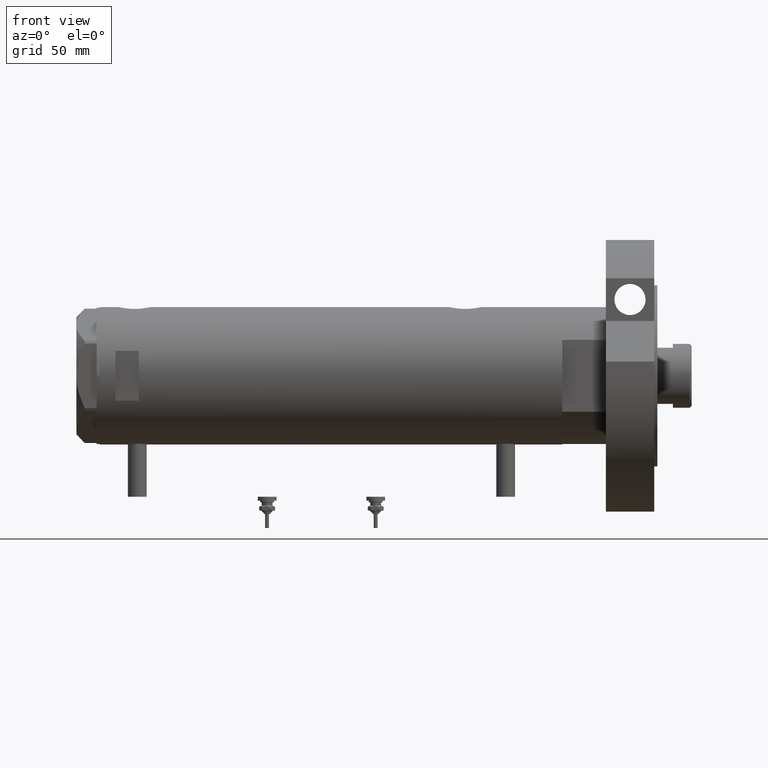
[diagram: clean part render]
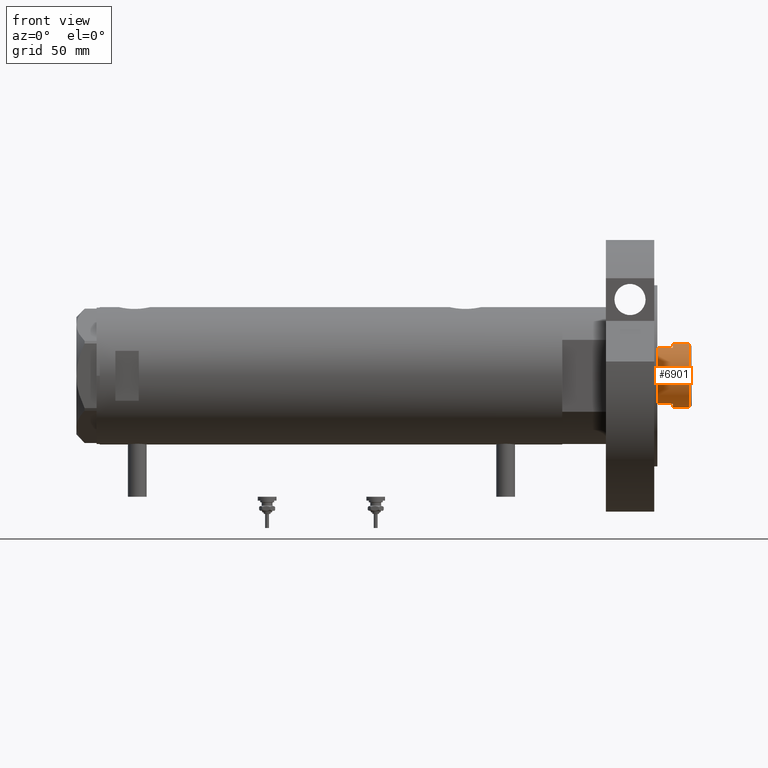
[diagram: same view with one face highlighted and labeled with its STEP entity id]
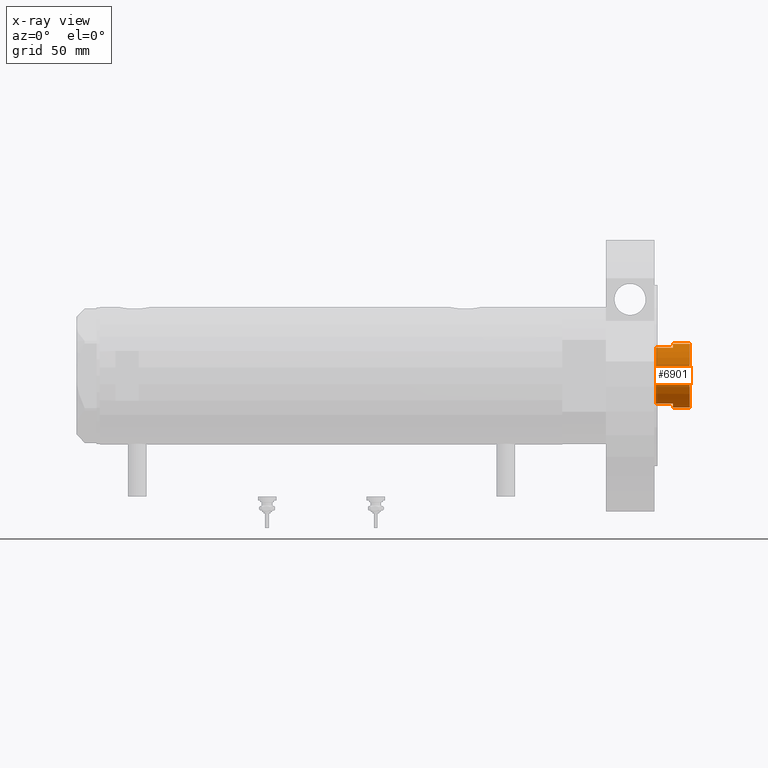
[diagram: x-ray of the same camera — body ghosted, the highlighted face saturated]
A machine part, front view. The second image highlights one B-rep face of the part: STEP entity #6901.
The next image is the same camera in x-ray: the body ghosted, the highlighted face saturated — about 0% of this face is hidden behind the body in this view.
In plain terms, the highlighted cylindrical surface (edge-blend (fillet) strip) has radius 20.5 mm, axis along (-1, -0, 0).
Its self-contained STEP definition (entity closure, byte-faithful):
#108 = DIRECTION ( 'NONE',  ( -0.000000000000000000, -0.000000000000000000, -1.000000000000000000 ) ) ;
#113 = ORIENTED_EDGE ( 'NONE', *, *, #3619, .T. ) ;
#152 = EDGE_LOOP ( 'NONE', ( #5168, #1674, #113, #3561, #3977, #4890, #2327, #1637 ) ) ;
#426 = AXIS2_PLACEMENT_3D ( 'NONE', #4572, #3351, #2210 ) ;
#434 = AXIS2_PLACEMENT_3D ( 'NONE', #4069, #5339, #1249 ) ;
#457 = DIRECTION ( 'NONE',  ( -0.000000000000000000, -0.000000000000000000, -1.000000000000000000 ) ) ;
#676 = LINE ( 'NONE', #4286, #5677 ) ;
#695 = EDGE_CURVE ( 'NONE', #1901, #1557, #1769, .T. ) ;
#704 = VECTOR ( 'NONE', #7347, 1000.000000000000000 ) ;
#929 = EDGE_CURVE ( 'NONE', #4910, #4103, #3904, .T. ) ;
#970 = EDGE_CURVE ( 'NONE', #6585, #6145, #1408, .T. ) ;
#1034 = LINE ( 'NONE', #5586, #704 ) ;
#1117 = CARTESIAN_POINT ( 'NONE',  ( -17.97852886083842705, -9.849999999999972999, 330.3000000000000114 ) ) ;
#1249 = DIRECTION ( 'NONE',  ( 1.000000000000000000, 0.000000000000000000, 0.000000000000000000 ) ) ;
#1408 = CIRCLE ( 'NONE', #6168, 20.50000000000000355 ) ;
#1447 = EDGE_CURVE ( 'NONE', #4103, #4504, #7152, .T. ) ;
#1496 = CIRCLE ( 'NONE', #3428, 20.50000000000000000 ) ;
#1557 = VERTEX_POINT ( 'NONE', #5737 ) ;
#1583 = DIRECTION ( 'NONE',  ( 1.000000000000000000, 0.000000000000000000, 0.000000000000000000 ) ) ;
#1637 = ORIENTED_EDGE ( 'NONE', *, *, #695, .T. ) ;
#1673 = VERTEX_POINT ( 'NONE', #5355 ) ;
#1674 = ORIENTED_EDGE ( 'NONE', *, *, #970, .T. ) ;
#1769 = CIRCLE ( 'NONE', #434, 20.50000000000000000 ) ;
#1803 = CARTESIAN_POINT ( 'NONE',  ( 17.97852886083843060, -9.849999999999994316, 341.3000000000000682 ) ) ;
#1901 = VERTEX_POINT ( 'NONE', #1803 ) ;
#2059 = CARTESIAN_POINT ( 'NONE',  ( -20.50000000000000355, 0.000000000000000000, 351.9000000000000341 ) ) ;
#2116 = DIRECTION ( 'NONE',  ( 0.000000000000000000, 0.000000000000000000, 1.000000000000000000 ) ) ;
#2210 = DIRECTION ( 'NONE',  ( -1.000000000000000000, 0.000000000000000000, 0.000000000000000000 ) ) ;
#2262 = CARTESIAN_POINT ( 'NONE',  ( 20.50000000000000355, 2.510525938252074481E-15, 351.9000000000000341 ) ) ;
#2327 = ORIENTED_EDGE ( 'NONE', *, *, #6027, .F. ) ;
#3031 = CARTESIAN_POINT ( 'NONE',  ( -17.97852886083842705, -9.849999999999996092, 341.3000000000000682 ) ) ;
#3278 = CARTESIAN_POINT ( 'NONE',  ( 0.000000000000000000, 0.000000000000000000, 341.3000000000000682 ) ) ;
#3351 = DIRECTION ( 'NONE',  ( -0.000000000000000000, -0.000000000000000000, -1.000000000000000000 ) ) ;
#3428 = AXIS2_PLACEMENT_3D ( 'NONE', #3278, #6198, #4426 ) ;
#3499 = CARTESIAN_POINT ( 'NONE',  ( 17.97852886083843060, -9.849999999999994316, 341.3000000000000682 ) ) ;
#3561 = ORIENTED_EDGE ( 'NONE', *, *, #5343, .T. ) ;
#3619 = EDGE_CURVE ( 'NONE', #6145, #1673, #1034, .T. ) ;
#3715 = AXIS2_PLACEMENT_3D ( 'NONE', #5563, #2116, #1583 ) ;
#3904 = LINE ( 'NONE', #7476, #5297 ) ;
#3943 = DIRECTION ( 'NONE',  ( 1.000000000000000000, 0.000000000000000000, 0.000000000000000000 ) ) ;
#3977 = ORIENTED_EDGE ( 'NONE', *, *, #929, .T. ) ;
#4046 = VECTOR ( 'NONE', #5299, 1000.000000000000000 ) ;
#4069 = CARTESIAN_POINT ( 'NONE',  ( 0.000000000000000000, 0.000000000000000000, 341.3000000000000682 ) ) ;
#4103 = VERTEX_POINT ( 'NONE', #1117 ) ;
#4286 = CARTESIAN_POINT ( 'NONE',  ( 20.50000000000000355, 2.510525938252074481E-15, 341.3000000000000682 ) ) ;
#4426 = DIRECTION ( 'NONE',  ( 1.000000000000000000, 0.000000000000000000, 0.000000000000000000 ) ) ;
#4504 = VERTEX_POINT ( 'NONE', #6036 ) ;
#4572 = CARTESIAN_POINT ( 'NONE',  ( 0.000000000000000000, 0.000000000000000000, 341.3000000000000682 ) ) ;
#4890 = ORIENTED_EDGE ( 'NONE', *, *, #1447, .T. ) ;
#4910 = VERTEX_POINT ( 'NONE', #3031 ) ;
#4932 = EDGE_CURVE ( 'NONE', #6585, #1557, #676, .T. ) ;
#5168 = ORIENTED_EDGE ( 'NONE', *, *, #4932, .F. ) ;
#5297 = VECTOR ( 'NONE', #457, 1000.000000000000000 ) ;
#5299 = DIRECTION ( 'NONE',  ( -0.000000000000000000, -0.000000000000000000, -1.000000000000000000 ) ) ;
#5339 = DIRECTION ( 'NONE',  ( 0.000000000000000000, 0.000000000000000000, 1.000000000000000000 ) ) ;
#5343 = EDGE_CURVE ( 'NONE', #1673, #4910, #1496, .T. ) ;
#5355 = CARTESIAN_POINT ( 'NONE',  ( -20.50000000000000000, 0.000000000000000000, 341.3000000000000682 ) ) ;
#5563 = CARTESIAN_POINT ( 'NONE',  ( 0.000000000000000000, 0.000000000000000000, 330.3000000000000114 ) ) ;
#5586 = CARTESIAN_POINT ( 'NONE',  ( -20.50000000000000355, 0.000000000000000000, 341.3000000000000682 ) ) ;
#5677 = VECTOR ( 'NONE', #108, 1000.000000000000000 ) ;
#5715 = DIRECTION ( 'NONE',  ( 0.000000000000000000, 0.000000000000000000, -1.000000000000000000 ) ) ;
#5737 = CARTESIAN_POINT ( 'NONE',  ( 20.50000000000000000, 2.510525938252074481E-15, 341.3000000000000682 ) ) ;
#5873 = LINE ( 'NONE', #3499, #4046 ) ;
#6027 = EDGE_CURVE ( 'NONE', #1901, #4504, #5873, .T. ) ;
#6036 = CARTESIAN_POINT ( 'NONE',  ( 17.97852886083843060, -9.849999999999960565, 330.3000000000000114 ) ) ;
#6145 = VERTEX_POINT ( 'NONE', #2059 ) ;
#6168 = AXIS2_PLACEMENT_3D ( 'NONE', #6214, #5715, #3943 ) ;
#6198 = DIRECTION ( 'NONE',  ( 0.000000000000000000, 0.000000000000000000, 1.000000000000000000 ) ) ;
#6214 = CARTESIAN_POINT ( 'NONE',  ( 0.000000000000000000, 0.000000000000000000, 351.9000000000000341 ) ) ;
#6257 = CYLINDRICAL_SURFACE ( 'NONE', #426, 20.50000000000000355 ) ;
#6585 = VERTEX_POINT ( 'NONE', #2262 ) ;
#6839 = FACE_OUTER_BOUND ( 'NONE', #152, .T. ) ;
#6901 = ADVANCED_FACE ( 'NONE', ( #6839 ), #6257, .T. ) ;
#7152 = CIRCLE ( 'NONE', #3715, 20.50000000000000355 ) ;
#7347 = DIRECTION ( 'NONE',  ( -0.000000000000000000, -0.000000000000000000, -1.000000000000000000 ) ) ;
#7476 = CARTESIAN_POINT ( 'NONE',  ( -17.97852886083842350, -9.850000000000001421, 341.3000000000000682 ) ) ;